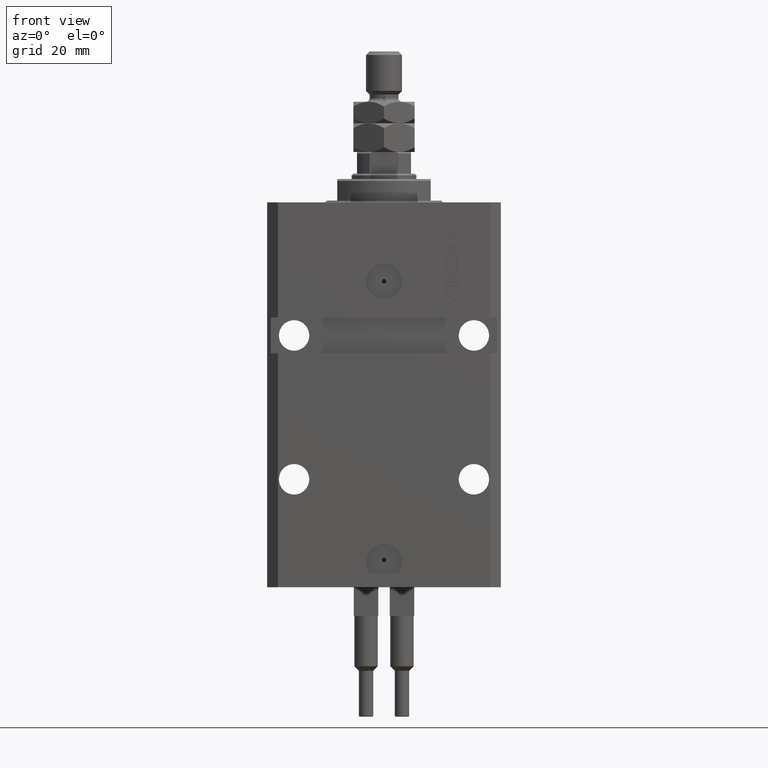
[diagram: clean part render]
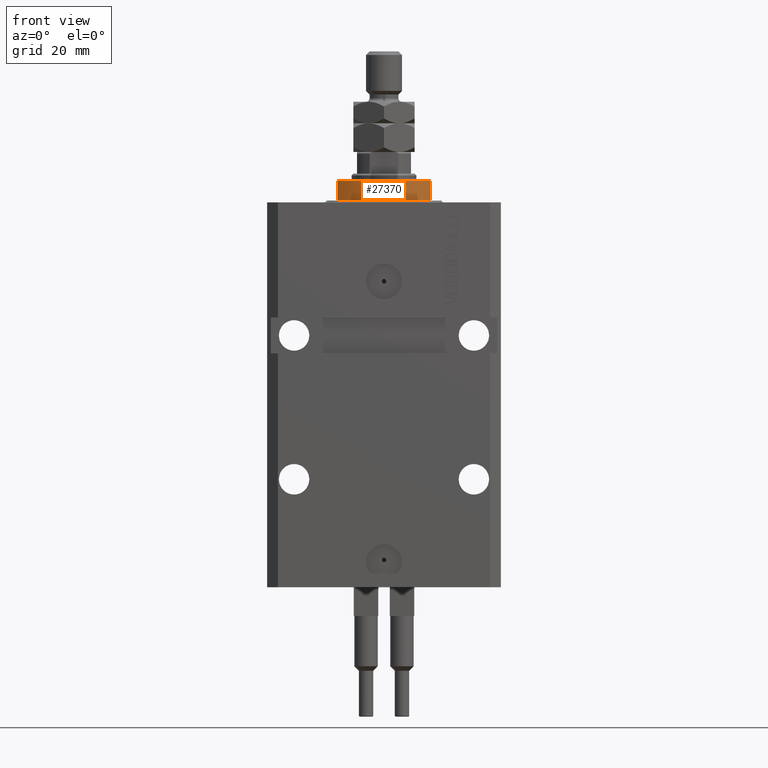
[diagram: same view with one face highlighted and labeled with its STEP entity id]
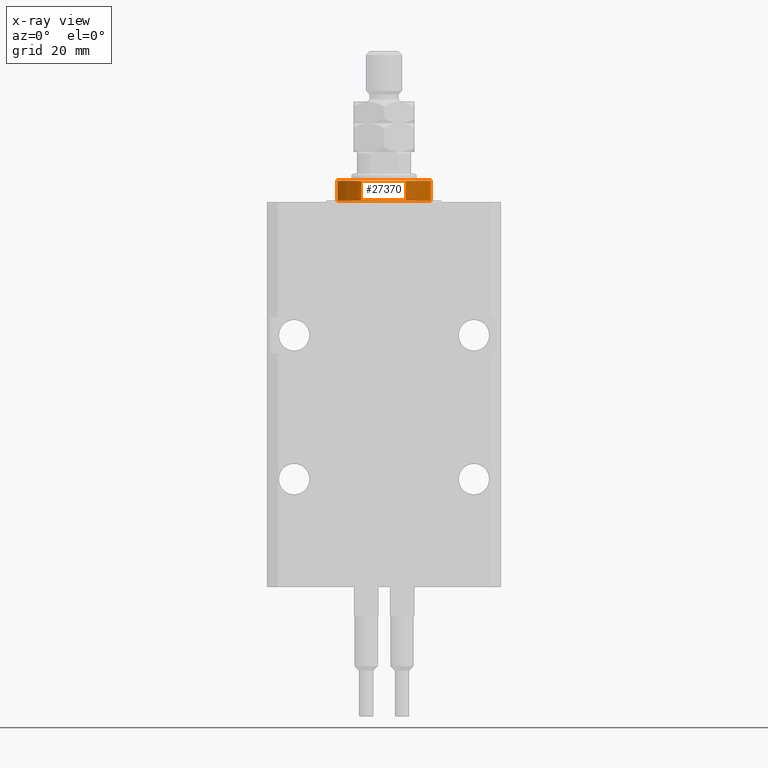
[diagram: x-ray of the same camera — body ghosted, the highlighted face saturated]
A machine part, front view. The second image highlights one B-rep face of the part: STEP entity #27370.
The next image is the same camera in x-ray: the body ghosted, the highlighted face saturated — about 0% of this face is hidden behind the body in this view.
In plain terms, the highlighted cylindrical surface (partial cylindrical patch) has radius 16 mm, axis along (0, 0, -1).
Its self-contained STEP definition (entity closure, byte-faithful):
#290 = EDGE_CURVE ( 'NONE', #33440, #5573, #50388, .T. ) ;
#2026 = DIRECTION ( 'NONE',  ( -1.000000000000000000, 0.000000000000000000, 0.000000000000000000 ) ) ;
#5169 = AXIS2_PLACEMENT_3D ( 'NONE', #39224, #38983, #15940 ) ;
#5573 = VERTEX_POINT ( 'NONE', #33716 ) ;
#6137 = LINE ( 'NONE', #24606, #20950 ) ;
#10218 = CIRCLE ( 'NONE', #17568, 16.00000000000000000 ) ;
#10606 = CARTESIAN_POINT ( 'NONE',  ( -13.00000000000000000, -9.327379053088815652, -6.000000000000023981 ) ) ;
#12140 = ORIENTED_EDGE ( 'NONE', *, *, #41574, .T. ) ;
#12530 = DIRECTION ( 'NONE',  ( 1.000000000000000000, 0.000000000000000000, 0.000000000000000000 ) ) ;
#15940 = DIRECTION ( 'NONE',  ( 1.000000000000000000, 0.000000000000000000, 0.000000000000000000 ) ) ;
#16369 = CARTESIAN_POINT ( 'NONE',  ( 0.000000000000000000, 0.000000000000000000, -0.4999999999999995559 ) ) ;
#17397 = EDGE_CURVE ( 'NONE', #19545, #32688, #6137, .T. ) ;
#17568 = AXIS2_PLACEMENT_3D ( 'NONE', #40914, #44514, #2026 ) ;
#17855 = AXIS2_PLACEMENT_3D ( 'NONE', #16369, #31971, #12530 ) ;
#19545 = VERTEX_POINT ( 'NONE', #36704 ) ;
#20950 = VECTOR ( 'NONE', #49632, 1000.000000000000000 ) ;
#23610 = FACE_OUTER_BOUND ( 'NONE', #37411, .T. ) ;
#24606 = CARTESIAN_POINT ( 'NONE',  ( -13.00000000000000000, -9.327379053088813876, -6.500000000000000000 ) ) ;
#25171 = CIRCLE ( 'NONE', #17855, 16.00000000000000000 ) ;
#27370 = ADVANCED_FACE ( 'NONE', ( #23610 ), #46154, .T. ) ;
#30484 = EDGE_CURVE ( 'NONE', #32688, #5573, #10218, .T. ) ;
#30929 = DIRECTION ( 'NONE',  ( 0.000000000000000000, 0.000000000000000000, -1.000000000000000000 ) ) ;
#31971 = DIRECTION ( 'NONE',  ( -0.000000000000000000, -0.000000000000000000, -1.000000000000000000 ) ) ;
#32637 = ORIENTED_EDGE ( 'NONE', *, *, #30484, .T. ) ;
#32688 = VERTEX_POINT ( 'NONE', #10606 ) ;
#33440 = VERTEX_POINT ( 'NONE', #49508 ) ;
#33716 = CARTESIAN_POINT ( 'NONE',  ( 13.00000000000000000, -9.327379053088815652, -6.000000000000023981 ) ) ;
#33734 = CARTESIAN_POINT ( 'NONE',  ( 13.00000000000000000, -9.327379053088813876, -6.500000000000000000 ) ) ;
#36162 = ORIENTED_EDGE ( 'NONE', *, *, #290, .F. ) ;
#36704 = CARTESIAN_POINT ( 'NONE',  ( -13.00000000000000000, -9.327379053088815652, -0.4999999999999995559 ) ) ;
#37411 = EDGE_LOOP ( 'NONE', ( #36162, #12140, #42071, #32637 ) ) ;
#38983 = DIRECTION ( 'NONE',  ( -0.000000000000000000, -0.000000000000000000, 1.000000000000000000 ) ) ;
#39224 = CARTESIAN_POINT ( 'NONE',  ( 0.000000000000000000, 0.000000000000000000, -6.500000000000000000 ) ) ;
#40049 = VECTOR ( 'NONE', #30929, 1000.000000000000000 ) ;
#40914 = CARTESIAN_POINT ( 'NONE',  ( 0.000000000000000000, 0.000000000000000000, -6.000000000000023981 ) ) ;
#41574 = EDGE_CURVE ( 'NONE', #33440, #19545, #25171, .T. ) ;
#42071 = ORIENTED_EDGE ( 'NONE', *, *, #17397, .T. ) ;
#44514 = DIRECTION ( 'NONE',  ( 0.000000000000000000, 0.000000000000000000, 1.000000000000000000 ) ) ;
#46154 = CYLINDRICAL_SURFACE ( 'NONE', #5169, 16.00000000000000000 ) ;
#49508 = CARTESIAN_POINT ( 'NONE',  ( 13.00000000000000000, -9.327379053088815652, -0.4999999999999995559 ) ) ;
#49632 = DIRECTION ( 'NONE',  ( 0.000000000000000000, 0.000000000000000000, -1.000000000000000000 ) ) ;
#50388 = LINE ( 'NONE', #33734, #40049 ) ;